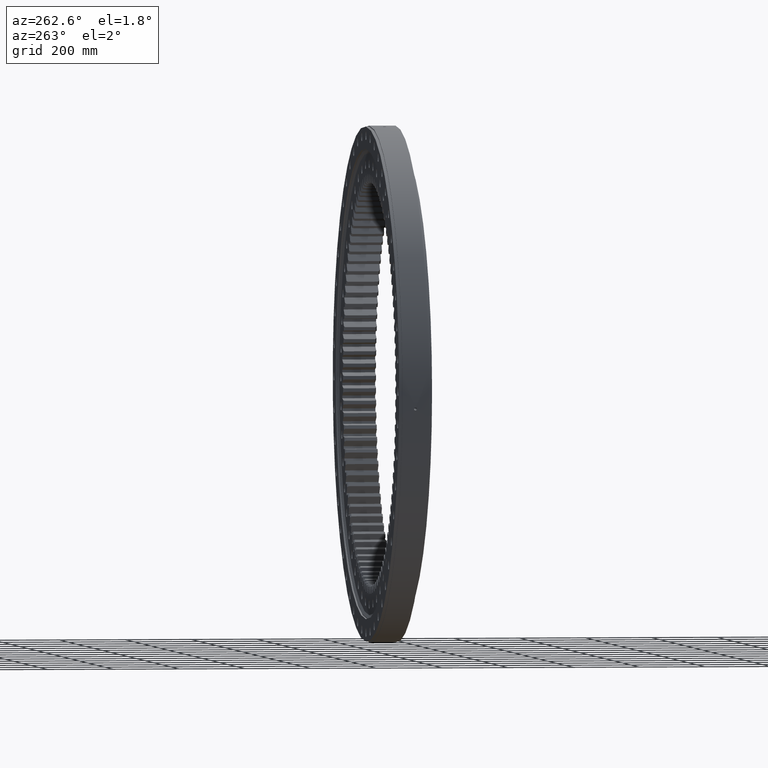
[diagram: clean part render]
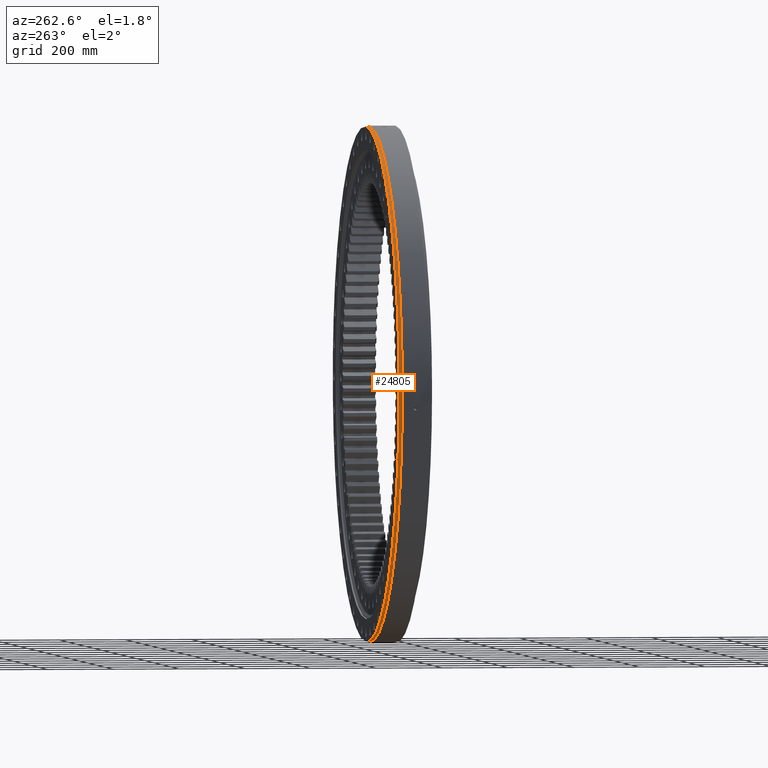
[diagram: same view with one face highlighted and labeled with its STEP entity id]
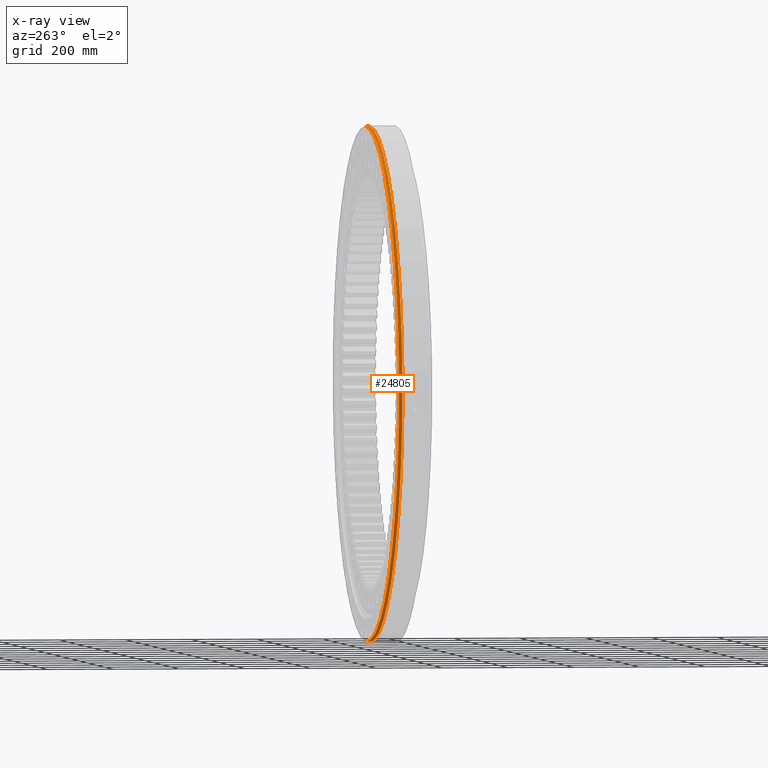
[diagram: x-ray of the same camera — body ghosted, the highlighted face saturated]
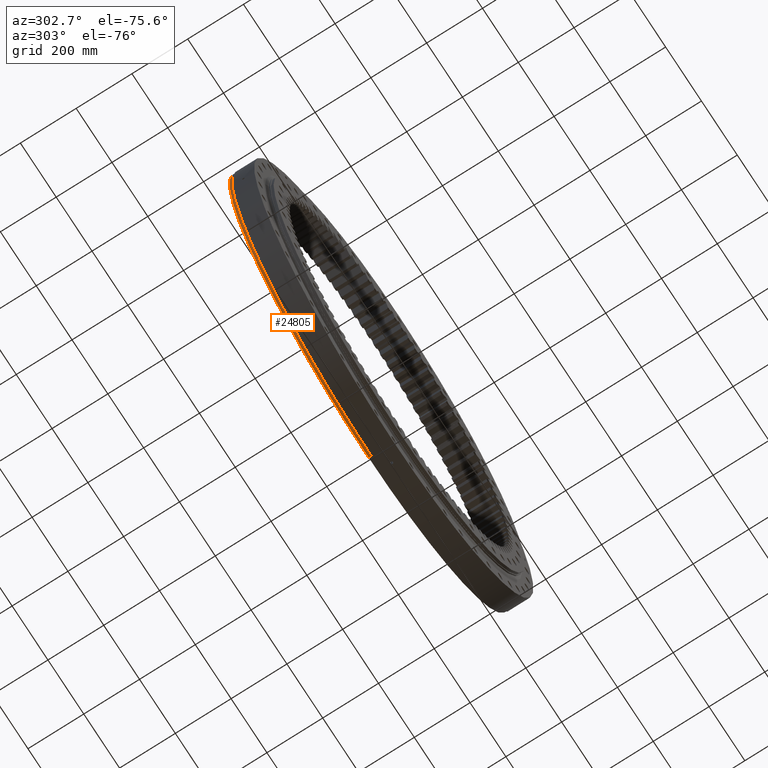
[diagram: same view with one face highlighted and labeled with its STEP entity id]
A machine part, auxiliary view. The second image highlights one B-rep face of the part: STEP entity #24805.
The next image is the same camera in x-ray: the body ghosted, the highlighted face saturated — about 0% of this face is hidden behind the body in this view.
A second angle (auxiliary view) of the same face is appended — the face is thin or edge-on in the first view.
In plain terms, the highlighted cylindrical surface (partial cylindrical patch) has radius 777.5 mm, axis along (0, -1, -0).
Its self-contained STEP definition (entity closure, byte-faithful):
#567 = EDGE_CURVE ( 'NONE', #22455, #18266, #15060, .T. ) ;
#935 = DIRECTION ( 'NONE',  ( -1.173697223544192200E-016, 1.000000000000000000, 3.494217355385783800E-017 ) ) ;
#2245 = CYLINDRICAL_SURFACE ( 'NONE', #12823, 777.5000000000000000 ) ;
#5980 = LINE ( 'NONE', #22150, #18682 ) ;
#7054 = AXIS2_PLACEMENT_3D ( 'NONE', #11892, #11855, #11829 ) ;
#7090 = CARTESIAN_POINT ( 'NONE',  ( -1.436578462219585900E-013, 50.00000000000011400, -777.5000000000000000 ) ) ;
#8982 = CARTESIAN_POINT ( 'NONE',  ( 3.729143396458198700E-014, 50.00000000000005700, 777.5000000000000000 ) ) ;
#11829 = DIRECTION ( 'NONE',  ( 5.551115123125783900E-017, -8.924622384446595600E-017, 1.000000000000000000 ) ) ;
#11855 = DIRECTION ( 'NONE',  ( 1.173697223544192200E-016, -1.000000000000000000, -8.822830751849692900E-017 ) ) ;
#11892 = CARTESIAN_POINT ( 'NONE',  ( -4.694788894176784300E-015, 40.00000000000013500, 2.728402540802663000E-016 ) ) ;
#12823 = AXIS2_PLACEMENT_3D ( 'NONE', #16041, #16058, #17609 ) ;
#13168 = EDGE_CURVE ( 'NONE', #22525, #17737, #5980, .T. ) ;
#13338 = CIRCLE ( 'NONE', #20160, 777.5000000000000000 ) ;
#13856 = ORIENTED_EDGE ( 'NONE', *, *, #567, .F. ) ;
#15060 = LINE ( 'NONE', #25115, #26806 ) ;
#15160 = DIRECTION ( 'NONE',  ( 5.551115123125782700E-017, -3.569848953778638500E-017, 1.000000000000000000 ) ) ;
#15712 = ORIENTED_EDGE ( 'NONE', *, *, #13168, .T. ) ;
#16041 = CARTESIAN_POINT ( 'NONE',  ( 7.172411751150241800E-015, -61.10955710955709500, -8.647884843640776400E-015 ) ) ;
#16058 = DIRECTION ( 'NONE',  ( 1.173697223544192200E-016, -1.000000000000000000, -8.822830751849692900E-017 ) ) ;
#16216 = CARTESIAN_POINT ( 'NONE',  ( -1.436578462219585900E-013, 40.00000000000019900, -777.5000000000000000 ) ) ;
#16252 = CIRCLE ( 'NONE', #7054, 777.5000000000000000 ) ;
#17314 = EDGE_CURVE ( 'NONE', #22525, #22455, #13338, .T. ) ;
#17609 = DIRECTION ( 'NONE',  ( 5.551115123125783900E-017, -8.924622384446595600E-017, 1.000000000000000000 ) ) ;
#17737 = VERTEX_POINT ( 'NONE', #16216 ) ;
#18266 = VERTEX_POINT ( 'NONE', #27658 ) ;
#18274 = ORIENTED_EDGE ( 'NONE', *, *, #17314, .F. ) ;
#18682 = VECTOR ( 'NONE', #22047, 1000.000000000000000 ) ;
#19959 = EDGE_LOOP ( 'NONE', ( #18274, #15712, #30344, #13856 ) ) ;
#20160 = AXIS2_PLACEMENT_3D ( 'NONE', #24378, #935, #15160 ) ;
#22047 = DIRECTION ( 'NONE',  ( 1.173697223544192200E-016, -1.000000000000000000, -8.822830751849692900E-017 ) ) ;
#22150 = CARTESIAN_POINT ( 'NONE',  ( -1.312037969648594400E-013, -61.10955710955702400, -777.5000000000000000 ) ) ;
#22275 = EDGE_CURVE ( 'NONE', #18266, #17737, #16252, .T. ) ;
#22455 = VERTEX_POINT ( 'NONE', #8982 ) ;
#22525 = VERTEX_POINT ( 'NONE', #7090 ) ;
#24189 = DIRECTION ( 'NONE',  ( 1.173697223544192200E-016, -1.000000000000000000, -8.822830751849692900E-017 ) ) ;
#24378 = CARTESIAN_POINT ( 'NONE',  ( -5.868486117720971300E-015, 50.00000000000008500, 1.155123329265231800E-015 ) ) ;
#24805 = ADVANCED_FACE ( 'NONE', ( #27470 ), #2245, .T. ) ;
#25115 = CARTESIAN_POINT ( 'NONE',  ( 5.033233183345321300E-014, -61.10955710955716600, 777.5000000000000000 ) ) ;
#26806 = VECTOR ( 'NONE', #24189, 1000.000000000000000 ) ;
#27470 = FACE_OUTER_BOUND ( 'NONE', #19959, .T. ) ;
#27658 = CARTESIAN_POINT ( 'NONE',  ( 3.846513118812619000E-014, 40.00000000000006400, 777.5000000000000000 ) ) ;
#30344 = ORIENTED_EDGE ( 'NONE', *, *, #22275, .F. ) ;